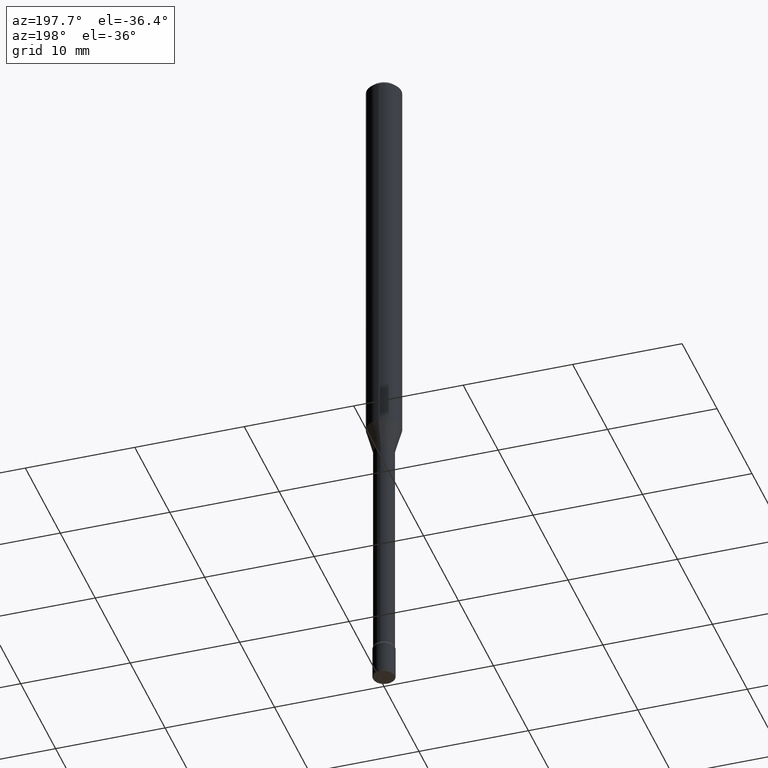
[diagram: clean part render]
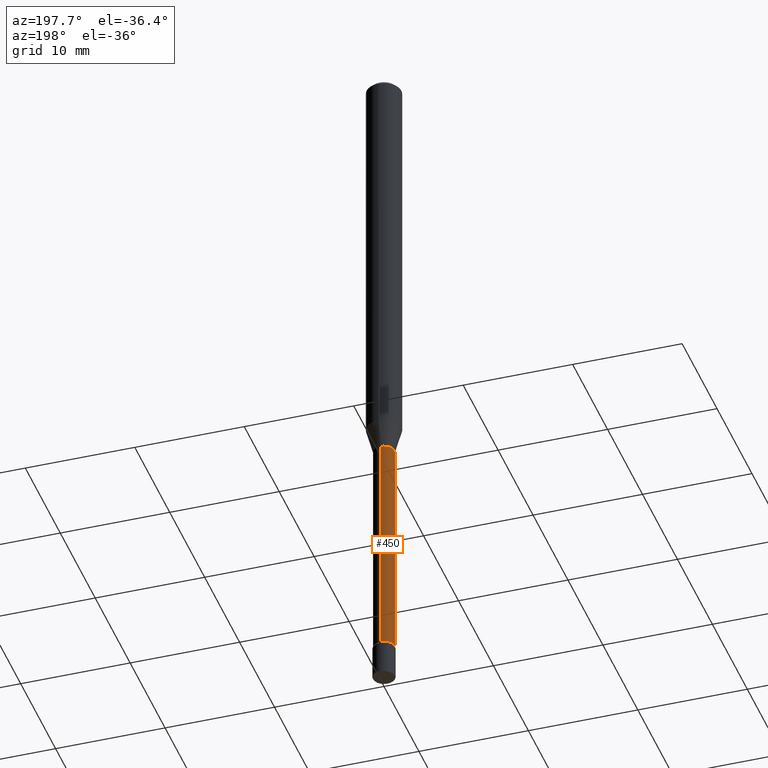
[diagram: same view with one face highlighted and labeled with its STEP entity id]
A machine part, auxiliary view. The second image highlights one B-rep face of the part: STEP entity #450.
In plain terms, the highlighted cylindrical surface (edge-blend (fillet) strip) has radius 0.955 mm, axis along (-0, 0, 1).
Its self-contained STEP definition (entity closure, byte-faithful):
#9 = DIRECTION ( 'NONE',  ( -2.445371158952634038E-29, 3.491621175237824120E-15, 1.000000000000000000 ) ) ;
#42 = LINE ( 'NONE', #263, #485 ) ;
#67 = DIRECTION ( 'NONE',  ( -6.982962677686265922E-15, -1.000000000000000000, 0.000000000000000000 ) ) ;
#69 = LINE ( 'NONE', #279, #318 ) ;
#108 = DIRECTION ( 'NONE',  ( -2.445371158952634318E-29, 3.491621175237824120E-15, 1.000000000000000000 ) ) ;
#143 = ORIENTED_EDGE ( 'NONE', *, *, #377, .F. ) ;
#154 = EDGE_CURVE ( 'NONE', #437, #375, #42, .T. ) ;
#182 = EDGE_CURVE ( 'NONE', #219, #437, #238, .T. ) ;
#191 = CARTESIAN_POINT ( 'NONE',  ( -2.625593966809659350E-16, -0.03760000000000538606, -1.541974787463811003 ) ) ;
#192 = CYLINDRICAL_SURFACE ( 'NONE', #458, 0.03760000000000002923 ) ;
#213 = AXIS2_PLACEMENT_3D ( 'NONE', #548, #500, #283 ) ;
#219 = VERTEX_POINT ( 'NONE', #353 ) ;
#224 = DIRECTION ( 'NONE',  ( -2.445371158952634038E-29, 3.491621175237824120E-15, 1.000000000000000000 ) ) ;
#238 = CIRCLE ( 'NONE', #325, 0.03760000000000005699 ) ;
#263 = CARTESIAN_POINT ( 'NONE',  ( -2.625593966810038003E-16, -0.03760000000000002923, 6.093583550801884071E-16 ) ) ;
#279 = CARTESIAN_POINT ( 'NONE',  ( 2.671640686457978776E-16, 0.03760000000000002923, 3.467884427023037687E-16 ) ) ;
#283 = DIRECTION ( 'NONE',  ( -6.982962677686265922E-15, -1.000000000000000000, 0.000000000000000000 ) ) ;
#288 = CARTESIAN_POINT ( 'NONE',  ( -1.169113584055446105E-44, 1.669184350826100908E-30, 4.780733988912460139E-16 ) ) ;
#313 = CARTESIAN_POINT ( 'NONE',  ( 5.800080981349790489E-29, -8.281640804682186145E-15, -2.371861204020250025 ) ) ;
#318 = VECTOR ( 'NONE', #224, 39.37007874015748143 ) ;
#324 = EDGE_LOOP ( 'NONE', ( #537, #557, #380, #143 ) ) ;
#325 = AXIS2_PLACEMENT_3D ( 'NONE', #313, #108, #67 ) ;
#353 = CARTESIAN_POINT ( 'NONE',  ( 2.756905814749770095E-16, 0.03759999999999177195, -2.371861204020250025 ) ) ;
#371 = DIRECTION ( 'NONE',  ( -2.445371158952634318E-29, 3.491621175237824120E-15, 1.000000000000000000 ) ) ;
#375 = VERTEX_POINT ( 'NONE', #191 ) ;
#377 = EDGE_CURVE ( 'NONE', #460, #375, #513, .T. ) ;
#380 = ORIENTED_EDGE ( 'NONE', *, *, #154, .T. ) ;
#394 = EDGE_CURVE ( 'NONE', #219, #460, #69, .T. ) ;
#421 = CARTESIAN_POINT ( 'NONE',  ( 2.671640686458558589E-16, 0.03759999999999461689, -1.541974787463811003 ) ) ;
#437 = VERTEX_POINT ( 'NONE', #514 ) ;
#450 = ADVANCED_FACE ( 'NONE', ( #510 ), #192, .T. ) ;
#458 = AXIS2_PLACEMENT_3D ( 'NONE', #288, #371, #551 ) ;
#460 = VERTEX_POINT ( 'NONE', #421 ) ;
#485 = VECTOR ( 'NONE', #9, 39.37007874015748143 ) ;
#500 = DIRECTION ( 'NONE',  ( -2.445371158952634318E-29, 3.491621175237824120E-15, 1.000000000000000000 ) ) ;
#510 = FACE_OUTER_BOUND ( 'NONE', #324, .T. ) ;
#513 = CIRCLE ( 'NONE', #213, 0.03760000000000000842 ) ;
#514 = CARTESIAN_POINT ( 'NONE',  ( -2.625593966809460162E-16, -0.03760000000000833509, -2.371861204020250025 ) ) ;
#537 = ORIENTED_EDGE ( 'NONE', *, *, #394, .F. ) ;
#548 = CARTESIAN_POINT ( 'NONE',  ( 3.770700673096121147E-29, -5.383991819591485043E-15, -1.541974787463811003 ) ) ;
#551 = DIRECTION ( 'NONE',  ( -6.982962677686265922E-15, -1.000000000000000000, 3.491621175237824120E-15 ) ) ;
#557 = ORIENTED_EDGE ( 'NONE', *, *, #182, .T. ) ;